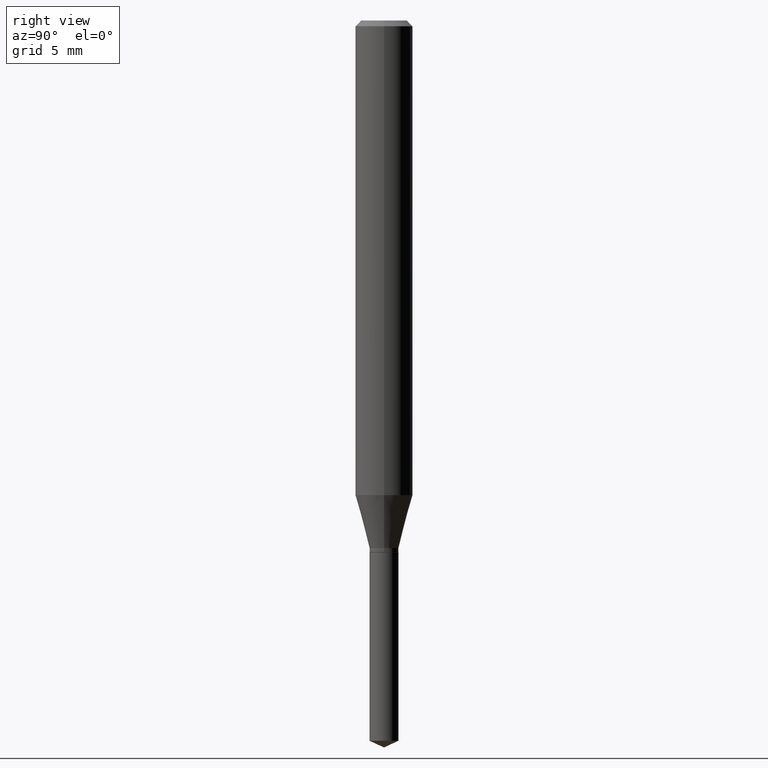
[diagram: clean part render]
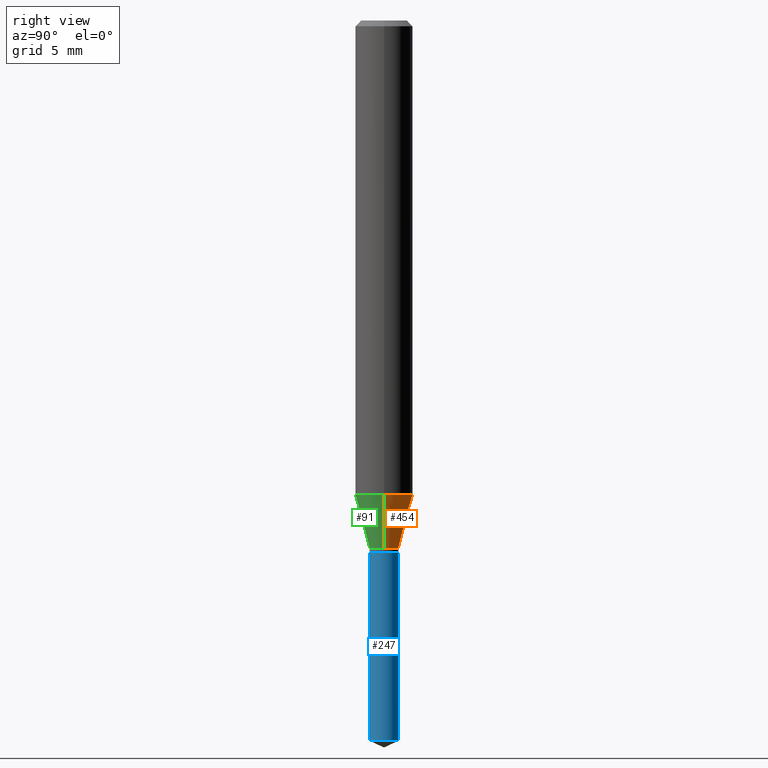
[diagram: same view with three faces highlighted in distinct colors, each labeled with its STEP entity id]
A machine part, right view with three faces highlighted in distinct colors.
Their STEP definitions:

[orange] entity #454 — the highlighted conical surface has half-angle 15 deg.
#6 = DIRECTION ( 'NONE',  ( 1.000000000000000000, -6.982962677686261977E-15, 0.000000000000000000 ) ) ;
#13 = ORIENTED_EDGE ( 'NONE', *, *, #365, .T. ) ;
#76 = LINE ( 'NONE', #269, #470 ) ;
#80 = AXIS2_PLACEMENT_3D ( 'NONE', #449, #196, #6 ) ;
#81 = DIRECTION ( 'NONE',  ( 1.000000000000000000, -6.982962677686266711E-15, 0.000000000000000000 ) ) ;
#82 = CARTESIAN_POINT ( 'NONE',  ( -0.05905000000000011628, -2.990591763228361215E-15, -0.9767107189593668970 ) ) ;
#98 = CONICAL_SURFACE ( 'NONE', #80, 0.02989999999999999949, 0.2617993877991497964 ) ;
#111 = EDGE_CURVE ( 'NONE', #293, #446, #123, .T. ) ;
#122 = FACE_OUTER_BOUND ( 'NONE', #160, .T. ) ;
#123 = CIRCLE ( 'NONE', #288, 0.05905000000000011628 ) ;
#126 = CARTESIAN_POINT ( 'NONE',  ( 2.388515595881789392E-29, -3.410167248694701497E-15, -0.9767107189593668970 ) ) ;
#130 = CARTESIAN_POINT ( 'NONE',  ( -0.02989999999999999949, -3.592389511012047083E-15, -1.085499999999999909 ) ) ;
#141 = EDGE_CURVE ( 'NONE', #441, #446, #238, .T. ) ;
#160 = EDGE_LOOP ( 'NONE', ( #13, #457, #323, #377 ) ) ;
#161 = CARTESIAN_POINT ( 'NONE',  ( 0.02989999999999999949, -3.998793577377053058E-15, -1.085499999999999909 ) ) ;
#171 = CARTESIAN_POINT ( 'NONE',  ( -0.02989999999999999949, -3.577550715321963908E-15, -1.085499999999999909 ) ) ;
#183 = CARTESIAN_POINT ( 'NONE',  ( 2.654556389113965852E-29, -3.790002993314234131E-15, -1.085499999999999909 ) ) ;
#196 = DIRECTION ( 'NONE',  ( -2.445468806185136597E-29, 3.491481338843145583E-15, 1.000000000000000000 ) ) ;
#198 = DIRECTION ( 'NONE',  ( 0.2588190451025211281, 1.565188264969623940E-15, 0.9659258262890682012 ) ) ;
#214 = CARTESIAN_POINT ( 'NONE',  ( 0.05905000000000011628, -3.822511194812076417E-15, -0.9767107189593668970 ) ) ;
#217 = VERTEX_POINT ( 'NONE', #161 ) ;
#233 = CIRCLE ( 'NONE', #488, 0.02989999999999999949 ) ;
#238 = LINE ( 'NONE', #171, #393 ) ;
#269 = CARTESIAN_POINT ( 'NONE',  ( 0.02989999999999999949, -3.998793577377053058E-15, -1.085499999999999909 ) ) ;
#275 = DIRECTION ( 'NONE',  ( -0.2588190451025211281, 5.211531920934548675E-15, 0.9659258262890682012 ) ) ;
#288 = AXIS2_PLACEMENT_3D ( 'NONE', #126, #430, #81 ) ;
#293 = VERTEX_POINT ( 'NONE', #214 ) ;
#323 = ORIENTED_EDGE ( 'NONE', *, *, #111, .F. ) ;
#365 = EDGE_CURVE ( 'NONE', #217, #441, #233, .T. ) ;
#366 = DIRECTION ( 'NONE',  ( 1.000000000000000000, -6.982962677686261977E-15, 0.000000000000000000 ) ) ;
#377 = ORIENTED_EDGE ( 'NONE', *, *, #447, .F. ) ;
#393 = VECTOR ( 'NONE', #275, 39.37007874015748143 ) ;
#430 = DIRECTION ( 'NONE',  ( -2.445468806185136597E-29, 3.491481338843145583E-15, 1.000000000000000000 ) ) ;
#441 = VERTEX_POINT ( 'NONE', #130 ) ;
#446 = VERTEX_POINT ( 'NONE', #82 ) ;
#447 = EDGE_CURVE ( 'NONE', #217, #293, #76, .T. ) ;
#449 = CARTESIAN_POINT ( 'NONE',  ( 2.654556389113965852E-29, -3.790002993314234131E-15, -1.085499999999999909 ) ) ;
#454 = ADVANCED_FACE ( 'NONE', ( #122 ), #98, .T. ) ;
#457 = ORIENTED_EDGE ( 'NONE', *, *, #141, .T. ) ;
#470 = VECTOR ( 'NONE', #198, 39.37007874015748143 ) ;
#473 = DIRECTION ( 'NONE',  ( -2.445468806185136597E-29, 3.491481338843145583E-15, 1.000000000000000000 ) ) ;
#488 = AXIS2_PLACEMENT_3D ( 'NONE', #183, #473, #366 ) ;

[blue] entity #247 — the highlighted cylindrical surface (edge-blend (fillet) strip) has radius 0.7595 mm, axis along (-0, 0, 1).
#3 = CARTESIAN_POINT ( 'NONE',  ( 2.124522779923061410E-16, 0.02989999999999482308, -1.482157401021165555 ) ) ;
#18 = ORIENTED_EDGE ( 'NONE', *, *, #292, .T. ) ;
#21 = EDGE_CURVE ( 'NONE', #461, #173, #294, .T. ) ;
#55 = DIRECTION ( 'NONE',  ( -6.982962677686266711E-15, -1.000000000000000000, 0.000000000000000000 ) ) ;
#60 = VERTEX_POINT ( 'NONE', #223 ) ;
#64 = DIRECTION ( 'NONE',  ( -6.982962677686266711E-15, -1.000000000000000000, 4.568307681712814929E-15 ) ) ;
#93 = CARTESIAN_POINT ( 'NONE',  ( -2.087905840627830827E-16, -0.02990000000000516897, -1.482157401021165555 ) ) ;
#105 = CIRCLE ( 'NONE', #260, 0.02989999999999999949 ) ;
#108 = DIRECTION ( 'NONE',  ( -2.445470214571802116E-29, 3.491479321953280158E-15, 1.000000000000000000 ) ) ;
#109 = VERTEX_POINT ( 'NONE', #93 ) ;
#129 = DIRECTION ( 'NONE',  ( -2.445470214571802116E-29, 3.491479321953280158E-15, 1.000000000000000000 ) ) ;
#138 = AXIS2_PLACEMENT_3D ( 'NONE', #184, #108, #64 ) ;
#173 = VERTEX_POINT ( 'NONE', #174 ) ;
#174 = CARTESIAN_POINT ( 'NONE',  ( 2.124522779923062642E-16, 0.02989999999999617963, -1.094500000000000028 ) ) ;
#179 = ORIENTED_EDGE ( 'NONE', *, *, #358, .F. ) ;
#184 = CARTESIAN_POINT ( 'NONE',  ( 2.676565608369631794E-29, -3.821426325363822773E-15, -1.094499999999999806 ) ) ;
#199 = EDGE_LOOP ( 'NONE', ( #18, #333, #179, #212 ) ) ;
#211 = FACE_OUTER_BOUND ( 'NONE', #199, .T. ) ;
#212 = ORIENTED_EDGE ( 'NONE', *, *, #218, .F. ) ;
#218 = EDGE_CURVE ( 'NONE', #109, #60, #243, .T. ) ;
#223 = CARTESIAN_POINT ( 'NONE',  ( -2.087905840627926230E-16, -0.02990000000000381936, -1.094499999999999806 ) ) ;
#243 = LINE ( 'NONE', #349, #345 ) ;
#247 = ADVANCED_FACE ( 'NONE', ( #211 ), #391, .T. ) ;
#260 = AXIS2_PLACEMENT_3D ( 'NONE', #362, #433, #55 ) ;
#292 = EDGE_CURVE ( 'NONE', #109, #461, #105, .T. ) ;
#294 = LINE ( 'NONE', #300, #405 ) ;
#300 = CARTESIAN_POINT ( 'NONE',  ( 2.124522779922966746E-16, 0.02989999999999617963, -1.094500000000000028 ) ) ;
#313 = CARTESIAN_POINT ( 'NONE',  ( 2.676565608369631794E-29, -3.821426325363822773E-15, -1.094499999999999806 ) ) ;
#333 = ORIENTED_EDGE ( 'NONE', *, *, #21, .T. ) ;
#345 = VECTOR ( 'NONE', #399, 39.37007874015748143 ) ;
#349 = CARTESIAN_POINT ( 'NONE',  ( -2.087905840627926230E-16, -0.02990000000000381936, -1.094499999999999806 ) ) ;
#354 = DIRECTION ( 'NONE',  ( -6.982962677686266711E-15, -1.000000000000000000, 4.568307681712814929E-15 ) ) ;
#358 = EDGE_CURVE ( 'NONE', #60, #173, #437, .T. ) ;
#362 = CARTESIAN_POINT ( 'NONE',  ( 3.624570236025209020E-29, -5.174924125031373128E-15, -1.482157401021165555 ) ) ;
#374 = DIRECTION ( 'NONE',  ( -2.445470214571802396E-29, 3.491479321953280158E-15, 1.000000000000000000 ) ) ;
#391 = CYLINDRICAL_SURFACE ( 'NONE', #476, 0.02989999999999999949 ) ;
#399 = DIRECTION ( 'NONE',  ( -2.445470214571802396E-29, 3.491479321953280158E-15, 1.000000000000000000 ) ) ;
#405 = VECTOR ( 'NONE', #374, 39.37007874015748143 ) ;
#433 = DIRECTION ( 'NONE',  ( -2.445470214571802116E-29, 3.491479321953280158E-15, 1.000000000000000000 ) ) ;
#437 = CIRCLE ( 'NONE', #138, 0.02989999999999999949 ) ;
#461 = VERTEX_POINT ( 'NONE', #3 ) ;
#476 = AXIS2_PLACEMENT_3D ( 'NONE', #313, #129, #354 ) ;

[green] entity #91 — the highlighted conical surface has half-angle 15 deg.
#30 = AXIS2_PLACEMENT_3D ( 'NONE', #266, #452, #316 ) ;
#39 = DIRECTION ( 'NONE',  ( -2.445468806185136597E-29, 3.491481338843145583E-15, 1.000000000000000000 ) ) ;
#56 = CIRCLE ( 'NONE', #30, 0.05905000000000011628 ) ;
#76 = LINE ( 'NONE', #269, #470 ) ;
#82 = CARTESIAN_POINT ( 'NONE',  ( -0.05905000000000011628, -2.990591763228361215E-15, -0.9767107189593668970 ) ) ;
#91 = ADVANCED_FACE ( 'NONE', ( #410 ), #202, .T. ) ;
#92 = ORIENTED_EDGE ( 'NONE', *, *, #141, .F. ) ;
#130 = CARTESIAN_POINT ( 'NONE',  ( -0.02989999999999999949, -3.592389511012047083E-15, -1.085499999999999909 ) ) ;
#132 = ORIENTED_EDGE ( 'NONE', *, *, #182, .F. ) ;
#135 = AXIS2_PLACEMENT_3D ( 'NONE', #378, #477, #332 ) ;
#141 = EDGE_CURVE ( 'NONE', #441, #446, #238, .T. ) ;
#161 = CARTESIAN_POINT ( 'NONE',  ( 0.02989999999999999949, -3.998793577377053058E-15, -1.085499999999999909 ) ) ;
#171 = CARTESIAN_POINT ( 'NONE',  ( -0.02989999999999999949, -3.577550715321963908E-15, -1.085499999999999909 ) ) ;
#182 = EDGE_CURVE ( 'NONE', #446, #293, #56, .T. ) ;
#198 = DIRECTION ( 'NONE',  ( 0.2588190451025211281, 1.565188264969623940E-15, 0.9659258262890682012 ) ) ;
#202 = CONICAL_SURFACE ( 'NONE', #135, 0.02989999999999999949, 0.2617993877991497964 ) ;
#214 = CARTESIAN_POINT ( 'NONE',  ( 0.05905000000000011628, -3.822511194812076417E-15, -0.9767107189593668970 ) ) ;
#217 = VERTEX_POINT ( 'NONE', #161 ) ;
#228 = DIRECTION ( 'NONE',  ( 1.000000000000000000, -6.982962677686261977E-15, 0.000000000000000000 ) ) ;
#238 = LINE ( 'NONE', #171, #393 ) ;
#245 = EDGE_LOOP ( 'NONE', ( #92, #466, #280, #132 ) ) ;
#266 = CARTESIAN_POINT ( 'NONE',  ( 2.388515595881789392E-29, -3.410167248694701497E-15, -0.9767107189593668970 ) ) ;
#268 = CIRCLE ( 'NONE', #335, 0.02989999999999999949 ) ;
#269 = CARTESIAN_POINT ( 'NONE',  ( 0.02989999999999999949, -3.998793577377053058E-15, -1.085499999999999909 ) ) ;
#275 = DIRECTION ( 'NONE',  ( -0.2588190451025211281, 5.211531920934548675E-15, 0.9659258262890682012 ) ) ;
#280 = ORIENTED_EDGE ( 'NONE', *, *, #447, .T. ) ;
#293 = VERTEX_POINT ( 'NONE', #214 ) ;
#316 = DIRECTION ( 'NONE',  ( 1.000000000000000000, -6.982962677686266711E-15, 0.000000000000000000 ) ) ;
#332 = DIRECTION ( 'NONE',  ( 1.000000000000000000, -6.982962677686261977E-15, 0.000000000000000000 ) ) ;
#335 = AXIS2_PLACEMENT_3D ( 'NONE', #422, #39, #228 ) ;
#378 = CARTESIAN_POINT ( 'NONE',  ( 2.654556389113965852E-29, -3.790002993314234131E-15, -1.085499999999999909 ) ) ;
#393 = VECTOR ( 'NONE', #275, 39.37007874015748143 ) ;
#410 = FACE_OUTER_BOUND ( 'NONE', #245, .T. ) ;
#422 = CARTESIAN_POINT ( 'NONE',  ( 2.654556389113965852E-29, -3.790002993314234131E-15, -1.085499999999999909 ) ) ;
#439 = EDGE_CURVE ( 'NONE', #441, #217, #268, .T. ) ;
#441 = VERTEX_POINT ( 'NONE', #130 ) ;
#446 = VERTEX_POINT ( 'NONE', #82 ) ;
#447 = EDGE_CURVE ( 'NONE', #217, #293, #76, .T. ) ;
#452 = DIRECTION ( 'NONE',  ( -2.445468806185136597E-29, 3.491481338843145583E-15, 1.000000000000000000 ) ) ;
#466 = ORIENTED_EDGE ( 'NONE', *, *, #439, .T. ) ;
#470 = VECTOR ( 'NONE', #198, 39.37007874015748143 ) ;
#477 = DIRECTION ( 'NONE',  ( -2.445468806185136597E-29, 3.491481338843145583E-15, 1.000000000000000000 ) ) ;